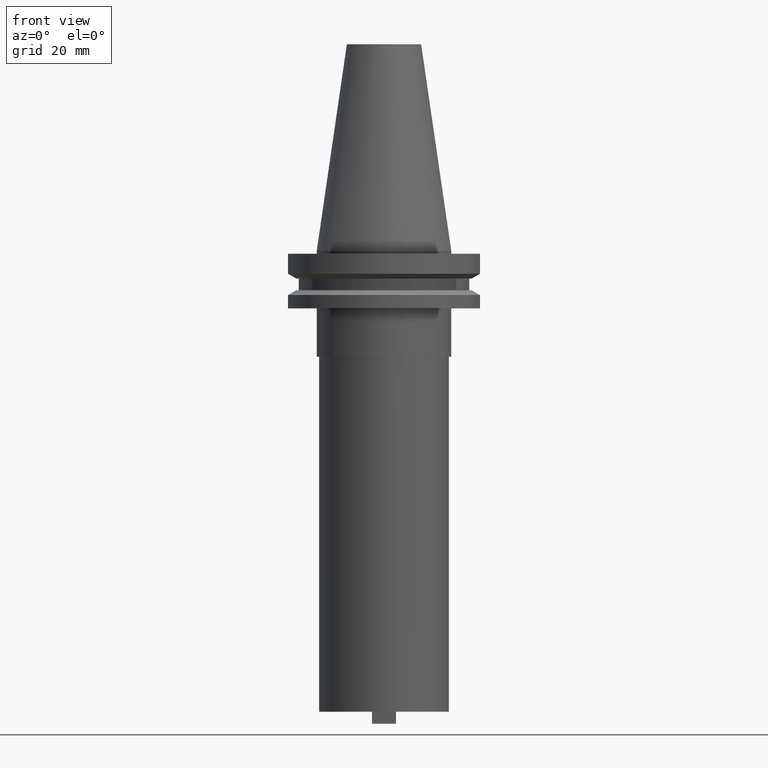
[diagram: clean part render]
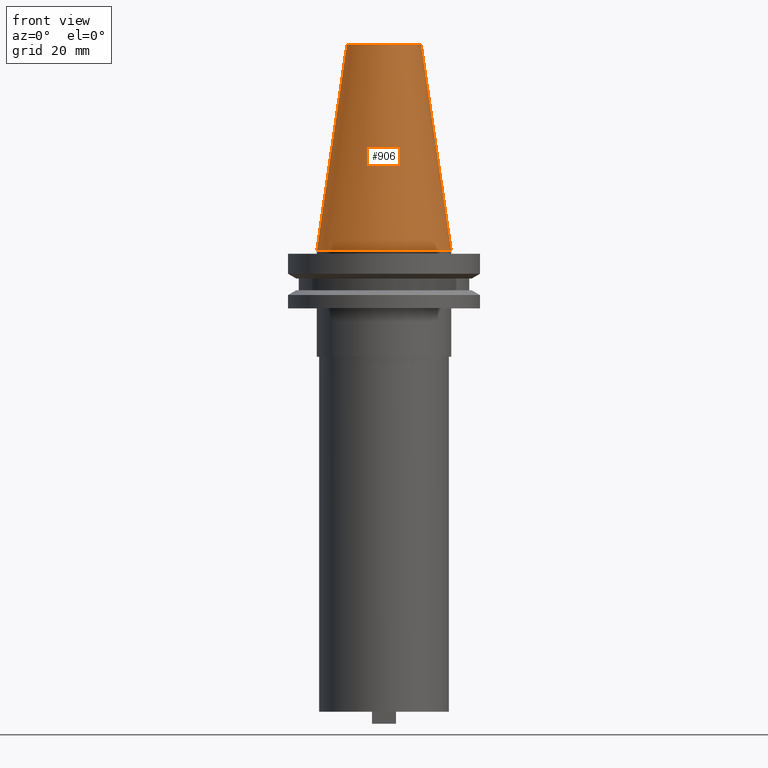
[diagram: same view with one face highlighted and labeled with its STEP entity id]
A machine part, front view. The second image highlights one B-rep face of the part: STEP entity #906.
In plain terms, the highlighted conical surface has half-angle 8.297 deg.
Its self-contained STEP definition (entity closure, byte-faithful):
#2 = LINE ( 'NONE', #514, #229 ) ;
#13 = AXIS2_PLACEMENT_3D ( 'NONE', #928, #614, #1008 ) ;
#55 = CARTESIAN_POINT ( 'NONE',  ( 22.22500000000000142, 2.721777511104992849E-15, 0.000000000000000000 ) ) ;
#61 = DIRECTION ( 'NONE',  ( -1.000000000000000000, 0.000000000000000000, 0.000000000000000000 ) ) ;
#155 = CARTESIAN_POINT ( 'NONE',  ( 0.000000000000000000, 0.000000000000000000, 0.000000000000000000 ) ) ;
#207 = AXIS2_PLACEMENT_3D ( 'NONE', #155, #503, #658 ) ;
#229 = VECTOR ( 'NONE', #773, 999.9999999999998863 ) ;
#295 = DIRECTION ( 'NONE',  ( -0.1443082272672999711, 0.000000000000000000, -0.9895327864921755756 ) ) ;
#310 = EDGE_LOOP ( 'NONE', ( #484, #1057, #327, #573 ) ) ;
#327 = ORIENTED_EDGE ( 'NONE', *, *, #726, .T. ) ;
#442 = CIRCLE ( 'NONE', #13, 12.27178102086201150 ) ;
#454 = VERTEX_POINT ( 'NONE', #885 ) ;
#484 = ORIENTED_EDGE ( 'NONE', *, *, #570, .F. ) ;
#490 = EDGE_CURVE ( 'NONE', #911, #933, #544, .T. ) ;
#503 = DIRECTION ( 'NONE',  ( -0.000000000000000000, -0.000000000000000000, 1.000000000000000000 ) ) ;
#514 = CARTESIAN_POINT ( 'NONE',  ( 22.22500000000000142, 2.721777511104992849E-15, 0.000000000000000000 ) ) ;
#544 = CIRCLE ( 'NONE', #207, 22.22500000000000142 ) ;
#568 = CONICAL_SURFACE ( 'NONE', #1064, 22.22500000000000142, 0.1448138465474119174 ) ;
#570 = EDGE_CURVE ( 'NONE', #454, #933, #2, .T. ) ;
#573 = ORIENTED_EDGE ( 'NONE', *, *, #490, .T. ) ;
#582 = CARTESIAN_POINT ( 'NONE',  ( -22.22500000000000142, 0.000000000000000000, 0.000000000000000000 ) ) ;
#614 = DIRECTION ( 'NONE',  ( -0.000000000000000000, -0.000000000000000000, 1.000000000000000000 ) ) ;
#658 = DIRECTION ( 'NONE',  ( 1.000000000000000000, 0.000000000000000000, 0.000000000000000000 ) ) ;
#726 = EDGE_CURVE ( 'NONE', #856, #911, #1034, .T. ) ;
#747 = FACE_OUTER_BOUND ( 'NONE', #310, .T. ) ;
#773 = DIRECTION ( 'NONE',  ( 0.1443082272672999711, 1.767266086135276757E-17, -0.9895327864921755756 ) ) ;
#830 = CARTESIAN_POINT ( 'NONE',  ( -12.27178102086201150, 0.000000000000000000, 68.25000000000000000 ) ) ;
#856 = VERTEX_POINT ( 'NONE', #830 ) ;
#885 = CARTESIAN_POINT ( 'NONE',  ( 12.27178102086201150, 2.112318622904291439E-15, 68.25000000000000000 ) ) ;
#894 = CARTESIAN_POINT ( 'NONE',  ( -22.22500000000000142, 0.000000000000000000, 0.000000000000000000 ) ) ;
#906 = ADVANCED_FACE ( 'NONE', ( #747 ), #568, .T. ) ;
#911 = VERTEX_POINT ( 'NONE', #582 ) ;
#915 = DIRECTION ( 'NONE',  ( 0.000000000000000000, 0.000000000000000000, -1.000000000000000000 ) ) ;
#928 = CARTESIAN_POINT ( 'NONE',  ( 0.000000000000000000, 0.000000000000000000, 68.25000000000000000 ) ) ;
#933 = VERTEX_POINT ( 'NONE', #55 ) ;
#969 = EDGE_CURVE ( 'NONE', #856, #454, #442, .T. ) ;
#979 = VECTOR ( 'NONE', #295, 999.9999999999998863 ) ;
#1008 = DIRECTION ( 'NONE',  ( 1.000000000000000000, 0.000000000000000000, 0.000000000000000000 ) ) ;
#1034 = LINE ( 'NONE', #894, #979 ) ;
#1057 = ORIENTED_EDGE ( 'NONE', *, *, #969, .F. ) ;
#1064 = AXIS2_PLACEMENT_3D ( 'NONE', #1088, #915, #61 ) ;
#1088 = CARTESIAN_POINT ( 'NONE',  ( 0.000000000000000000, 0.000000000000000000, 0.000000000000000000 ) ) ;